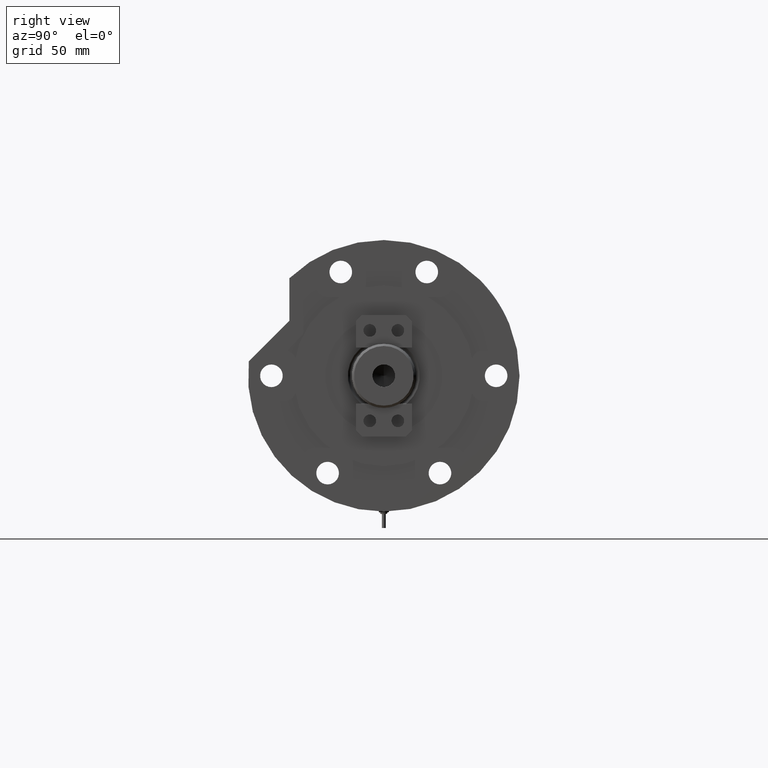
[diagram: clean part render]
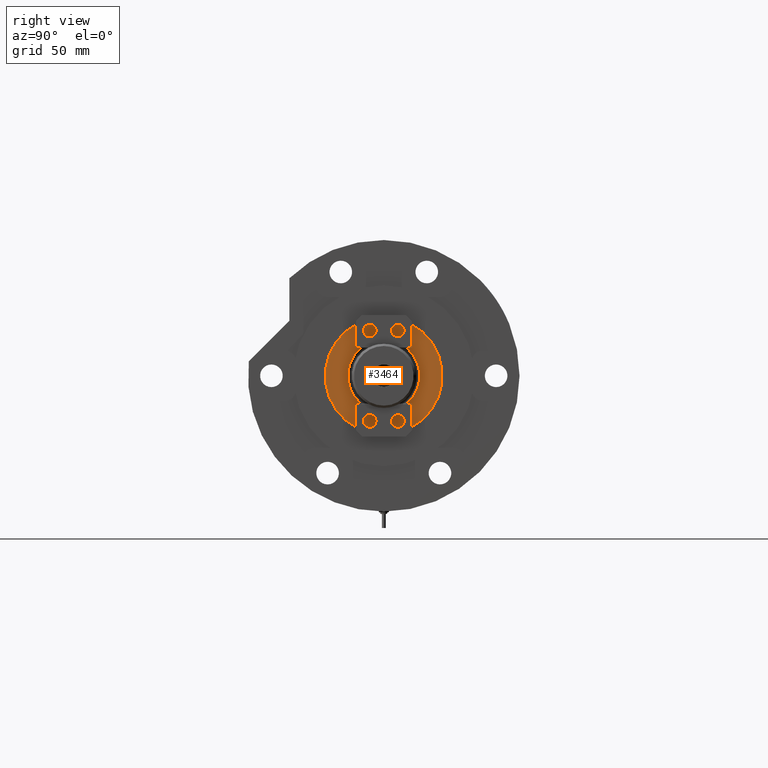
[diagram: same view with one face highlighted and labeled with its STEP entity id]
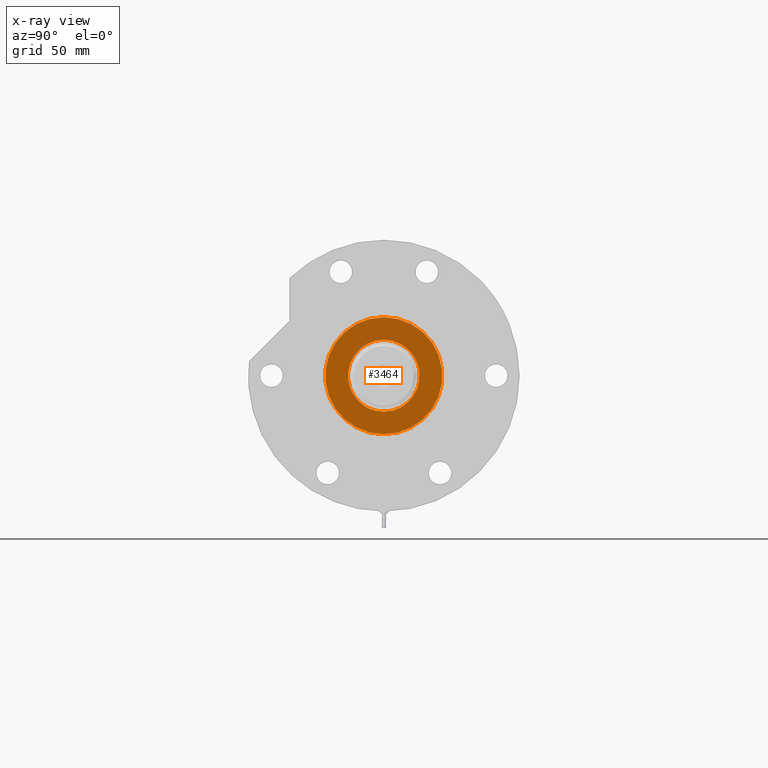
[diagram: x-ray of the same camera — body ghosted, the highlighted face saturated]
A machine part, right view. The second image highlights one B-rep face of the part: STEP entity #3464.
The next image is the same camera in x-ray: the body ghosted, the highlighted face saturated — about 0% of this face is hidden behind the body in this view.
In plain terms, the highlighted planar face has unit normal (1, 0, -0).
Its self-contained STEP definition (entity closure, byte-faithful):
#130 = EDGE_LOOP ( 'NONE', ( #4311, #3347 ) ) ;
#197 = EDGE_CURVE ( 'NONE', #851, #7714, #1135, .T. ) ;
#281 = CIRCLE ( 'NONE', #2676, 23.05000000000002913 ) ;
#626 = CARTESIAN_POINT ( 'NONE',  ( 0.000000000000000000, 0.000000000000000000, 59.89999999999999147 ) ) ;
#851 = VERTEX_POINT ( 'NONE', #7976 ) ;
#1135 = CIRCLE ( 'NONE', #6763, 37.50000000000000711 ) ;
#1365 = AXIS2_PLACEMENT_3D ( 'NONE', #5221, #6608, #2163 ) ;
#1674 = VERTEX_POINT ( 'NONE', #2917 ) ;
#1884 = PLANE ( 'NONE',  #5664 ) ;
#1948 = DIRECTION ( 'NONE',  ( 1.000000000000000000, 0.000000000000000000, 0.000000000000000000 ) ) ;
#2163 = DIRECTION ( 'NONE',  ( 1.000000000000000000, 0.000000000000000000, 0.000000000000000000 ) ) ;
#2188 = AXIS2_PLACEMENT_3D ( 'NONE', #4949, #3649, #2350 ) ;
#2350 = DIRECTION ( 'NONE',  ( 1.000000000000000000, 0.000000000000000000, 0.000000000000000000 ) ) ;
#2351 = EDGE_CURVE ( 'NONE', #3063, #1674, #281, .T. ) ;
#2386 = EDGE_LOOP ( 'NONE', ( #5326, #2977 ) ) ;
#2492 = DIRECTION ( 'NONE',  ( 0.000000000000000000, 0.000000000000000000, 1.000000000000000000 ) ) ;
#2676 = AXIS2_PLACEMENT_3D ( 'NONE', #3426, #6666, #1948 ) ;
#2742 = EDGE_CURVE ( 'NONE', #7714, #851, #4971, .T. ) ;
#2917 = CARTESIAN_POINT ( 'NONE',  ( -23.05000000000002913, 2.822810872034651791E-15, 59.89999999999999147 ) ) ;
#2977 = ORIENTED_EDGE ( 'NONE', *, *, #2742, .T. ) ;
#3063 = VERTEX_POINT ( 'NONE', #3951 ) ;
#3085 = DIRECTION ( 'NONE',  ( 1.000000000000000000, 0.000000000000000000, 0.000000000000000000 ) ) ;
#3347 = ORIENTED_EDGE ( 'NONE', *, *, #6043, .T. ) ;
#3426 = CARTESIAN_POINT ( 'NONE',  ( 0.000000000000000000, 0.000000000000000000, 59.89999999999999147 ) ) ;
#3464 = ADVANCED_FACE ( 'NONE', ( #3839, #8167 ), #1884, .T. ) ;
#3649 = DIRECTION ( 'NONE',  ( -0.000000000000000000, -0.000000000000000000, -1.000000000000000000 ) ) ;
#3839 = FACE_BOUND ( 'NONE', #130, .T. ) ;
#3881 = DIRECTION ( 'NONE',  ( 1.000000000000000000, 0.000000000000000000, -0.000000000000000000 ) ) ;
#3951 = CARTESIAN_POINT ( 'NONE',  ( 23.05000000000002913, 0.000000000000000000, 59.89999999999999147 ) ) ;
#4311 = ORIENTED_EDGE ( 'NONE', *, *, #2351, .T. ) ;
#4949 = CARTESIAN_POINT ( 'NONE',  ( 0.000000000000000000, 0.000000000000000000, 59.89999999999999147 ) ) ;
#4971 = CIRCLE ( 'NONE', #1365, 37.50000000000000711 ) ;
#4995 = CIRCLE ( 'NONE', #2188, 23.05000000000002913 ) ;
#5221 = CARTESIAN_POINT ( 'NONE',  ( 0.000000000000000000, 0.000000000000000000, 59.89999999999999147 ) ) ;
#5326 = ORIENTED_EDGE ( 'NONE', *, *, #197, .T. ) ;
#5664 = AXIS2_PLACEMENT_3D ( 'NONE', #626, #5775, #3881 ) ;
#5775 = DIRECTION ( 'NONE',  ( 0.000000000000000000, 0.000000000000000000, 1.000000000000000000 ) ) ;
#6043 = EDGE_CURVE ( 'NONE', #1674, #3063, #4995, .T. ) ;
#6283 = CARTESIAN_POINT ( 'NONE',  ( 0.000000000000000000, 0.000000000000000000, 59.89999999999999147 ) ) ;
#6608 = DIRECTION ( 'NONE',  ( 0.000000000000000000, 0.000000000000000000, 1.000000000000000000 ) ) ;
#6666 = DIRECTION ( 'NONE',  ( -0.000000000000000000, -0.000000000000000000, -1.000000000000000000 ) ) ;
#6763 = AXIS2_PLACEMENT_3D ( 'NONE', #6283, #2492, #3085 ) ;
#7714 = VERTEX_POINT ( 'NONE', #8081 ) ;
#7976 = CARTESIAN_POINT ( 'NONE',  ( -37.50000000000000711, 0.000000000000000000, 59.89999999999999147 ) ) ;
#8081 = CARTESIAN_POINT ( 'NONE',  ( 37.50000000000000711, 4.592425496802575156E-15, 59.89999999999999147 ) ) ;
#8167 = FACE_OUTER_BOUND ( 'NONE', #2386, .T. ) ;